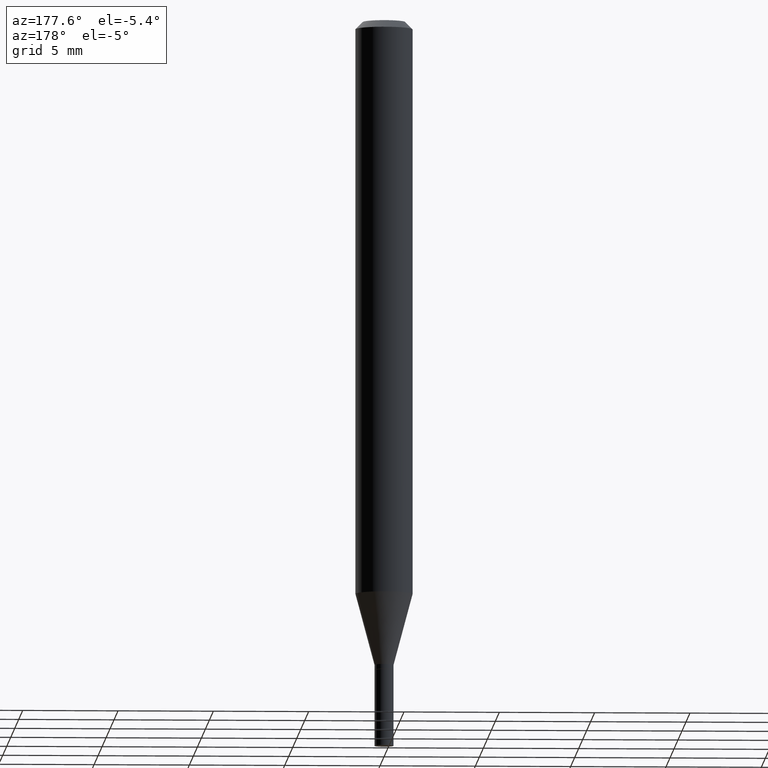
[diagram: clean part render]
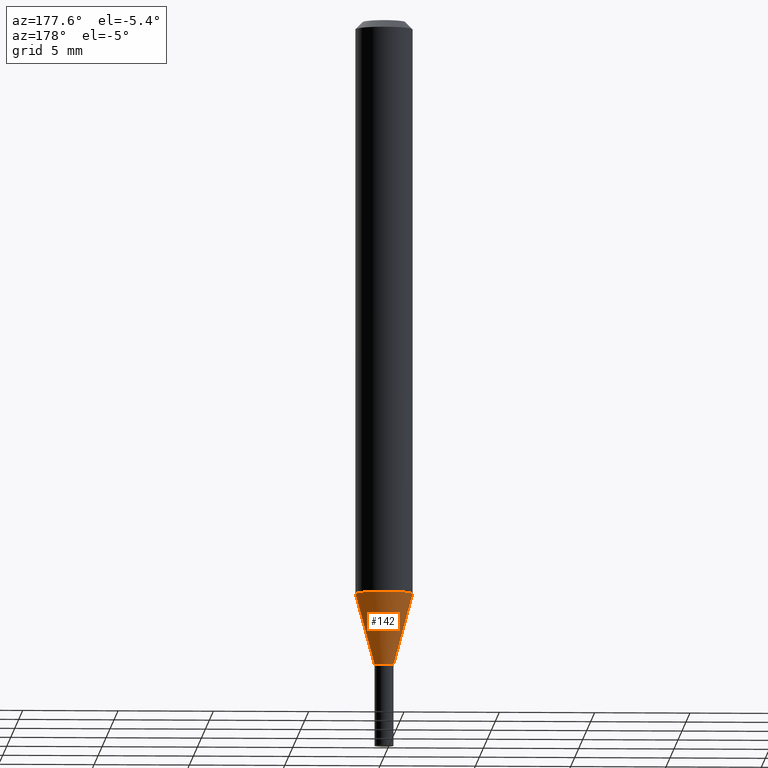
[diagram: same view with one face highlighted and labeled with its STEP entity id]
A machine part, auxiliary view. The second image highlights one B-rep face of the part: STEP entity #142.
In plain terms, the highlighted conical surface has half-angle 15 deg.
Its self-contained STEP definition (entity closure, byte-faithful):
#3 = CARTESIAN_POINT ( 'NONE',  ( 3.257364449838602072E-29, -4.650653143339069312E-15, -1.331999999999999851 ) ) ;
#11 = CIRCLE ( 'NONE', #79, 0.01969999999999989468 ) ;
#16 = EDGE_CURVE ( 'NONE', #183, #369, #262, .T. ) ;
#19 = CIRCLE ( 'NONE', #233, 0.05905000000000001914 ) ;
#26 = CARTESIAN_POINT ( 'NONE',  ( 0.05905000000000001914, -4.550251410184451334E-15, -1.185143800722164409 ) ) ;
#44 = VERTEX_POINT ( 'NONE', #328 ) ;
#60 = VECTOR ( 'NONE', #408, 39.37007874015748854 ) ;
#78 = VERTEX_POINT ( 'NONE', #26 ) ;
#79 = AXIS2_PLACEMENT_3D ( 'NONE', #3, #409, #85 ) ;
#83 = CARTESIAN_POINT ( 'NONE',  ( 0.01969999999999989468, -4.788217508089488526E-15, -1.331999999999999851 ) ) ;
#85 = DIRECTION ( 'NONE',  ( 1.000000000000000000, -6.982962677686266711E-15, 0.000000000000000000 ) ) ;
#112 = EDGE_CURVE ( 'NONE', #78, #369, #19, .T. ) ;
#120 = ORIENTED_EDGE ( 'NONE', *, *, #123, .T. ) ;
#123 = EDGE_CURVE ( 'NONE', #44, #183, #11, .T. ) ;
#124 = ORIENTED_EDGE ( 'NONE', *, *, #226, .F. ) ;
#142 = ADVANCED_FACE ( 'NONE', ( #160 ), #146, .T. ) ;
#145 = DIRECTION ( 'NONE',  ( -2.445468806185136597E-29, 3.491481338843145583E-15, 1.000000000000000000 ) ) ;
#146 = CONICAL_SURFACE ( 'NONE', #252, 0.01969999999999989468, 0.2617993877991499074 ) ;
#148 = DIRECTION ( 'NONE',  ( 0.2588190451025211836, 1.565188264969622559E-15, 0.9659258262890679791 ) ) ;
#160 = FACE_OUTER_BOUND ( 'NONE', #275, .T. ) ;
#183 = VERTEX_POINT ( 'NONE', #221 ) ;
#185 = CARTESIAN_POINT ( 'NONE',  ( -0.01969999999999989468, -4.510676224394330003E-15, -1.331999999999999851 ) ) ;
#192 = VECTOR ( 'NONE', #148, 39.37007874015748854 ) ;
#221 = CARTESIAN_POINT ( 'NONE',  ( -0.01969999999999989468, -4.114504101497534251E-15, -1.331999999999999851 ) ) ;
#226 = EDGE_CURVE ( 'NONE', #44, #78, #261, .T. ) ;
#233 = AXIS2_PLACEMENT_3D ( 'NONE', #324, #284, #241 ) ;
#241 = DIRECTION ( 'NONE',  ( 1.000000000000000000, -6.982962677686270655E-15, 0.000000000000000000 ) ) ;
#252 = AXIS2_PLACEMENT_3D ( 'NONE', #304, #145, #403 ) ;
#261 = LINE ( 'NONE', #83, #192 ) ;
#262 = LINE ( 'NONE', #185, #60 ) ;
#275 = EDGE_LOOP ( 'NONE', ( #120, #327, #359, #124 ) ) ;
#276 = CARTESIAN_POINT ( 'NONE',  ( -0.05905000000000001914, -3.718331978600737710E-15, -1.185143800722164409 ) ) ;
#284 = DIRECTION ( 'NONE',  ( -2.445468806185136597E-29, 3.491481338843145583E-15, 1.000000000000000000 ) ) ;
#304 = CARTESIAN_POINT ( 'NONE',  ( 3.257364449838602072E-29, -4.650653143339069312E-15, -1.331999999999999851 ) ) ;
#324 = CARTESIAN_POINT ( 'NONE',  ( 2.898232195509746702E-29, -4.137907464067076414E-15, -1.185143800722164409 ) ) ;
#327 = ORIENTED_EDGE ( 'NONE', *, *, #16, .T. ) ;
#328 = CARTESIAN_POINT ( 'NONE',  ( 0.01969999999999989468, -4.788217508089488526E-15, -1.331999999999999851 ) ) ;
#359 = ORIENTED_EDGE ( 'NONE', *, *, #112, .F. ) ;
#369 = VERTEX_POINT ( 'NONE', #276 ) ;
#403 = DIRECTION ( 'NONE',  ( 1.000000000000000000, -6.982962677686266711E-15, 0.000000000000000000 ) ) ;
#408 = DIRECTION ( 'NONE',  ( -0.2588190451025211836, 5.211531920934547886E-15, 0.9659258262890679791 ) ) ;
#409 = DIRECTION ( 'NONE',  ( -2.445468806185136597E-29, 3.491481338843145583E-15, 1.000000000000000000 ) ) ;